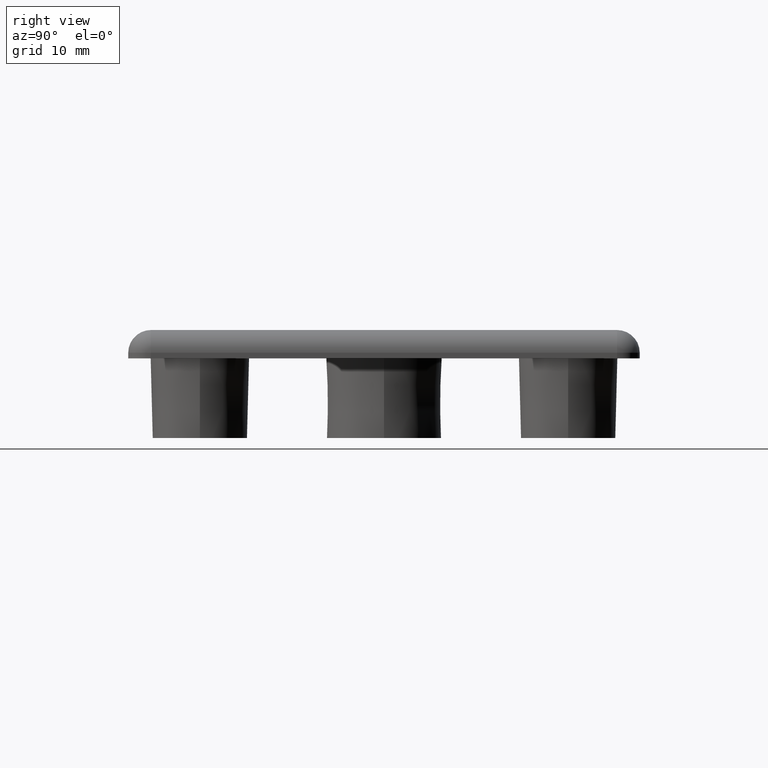
[diagram: clean part render]
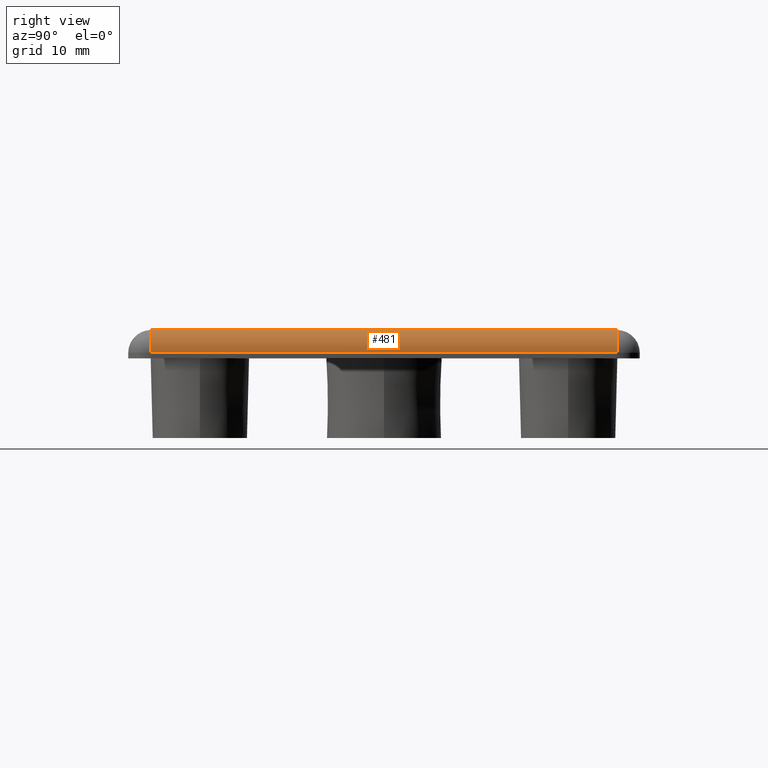
[diagram: same view with one face highlighted and labeled with its STEP entity id]
A machine part, right view. The second image highlights one B-rep face of the part: STEP entity #481.
In plain terms, the highlighted cylindrical surface (edge-blend (fillet) strip) has radius 2 mm, axis along (-0, 1, 0).
Its self-contained STEP definition (entity closure, byte-faithful):
#23=CYLINDRICAL_SURFACE('',#554,2.);
#34=LINE('',#782,#54);
#42=LINE('',#853,#62);
#54=VECTOR('',#610,41.);
#62=VECTOR('',#708,41.);
#131=FACE_OUTER_BOUND('',#189,.T.);
#189=EDGE_LOOP('',(#407,#408,#409,#410));
#225=CIRCLE('',#542,2.);
#231=CIRCLE('',#552,2.);
#252=VERTEX_POINT('',#776);
#254=VERTEX_POINT('',#780);
#269=VERTEX_POINT('',#830);
#272=VERTEX_POINT('',#846);
#294=EDGE_CURVE('',#252,#254,#34,.T.);
#310=EDGE_CURVE('',#269,#252,#225,.F.);
#320=EDGE_CURVE('',#254,#272,#231,.F.);
#323=EDGE_CURVE('',#272,#269,#42,.T.);
#407=ORIENTED_EDGE('',*,*,#310,.T.);
#408=ORIENTED_EDGE('',*,*,#294,.T.);
#409=ORIENTED_EDGE('',*,*,#320,.T.);
#410=ORIENTED_EDGE('',*,*,#323,.T.);
#481=ADVANCED_FACE('',(#131),#23,.T.);
#542=AXIS2_PLACEMENT_3D('',#831,#676,#677);
#552=AXIS2_PLACEMENT_3D('',#848,#700,#701);
#554=AXIS2_PLACEMENT_3D('',#852,#706,#707);
#610=DIRECTION('',(9.86864910777917E-17,-1.,0.));
#676=DIRECTION('center_axis',(0.,1.,0.));
#677=DIRECTION('ref_axis',(1.,0.,0.));
#700=DIRECTION('center_axis',(-2.22044604925031E-15,-1.,0.));
#701=DIRECTION('ref_axis',(0.,0.,1.));
#706=DIRECTION('center_axis',(-9.86864910777917E-17,1.,0.));
#707=DIRECTION('ref_axis',(0.707106781186548,0.,0.707106781186547));
#708=DIRECTION('',(-9.86864910777917E-17,1.,0.));
#776=CARTESIAN_POINT('',(20.5,20.5,2.5));
#780=CARTESIAN_POINT('',(20.5,-20.5,2.5));
#782=CARTESIAN_POINT('',(20.5,-11.25,2.5));
#830=CARTESIAN_POINT('',(22.5,20.5,0.5));
#831=CARTESIAN_POINT('Origin',(20.5,20.5,0.5));
#846=CARTESIAN_POINT('',(22.5,-20.5,0.5));
#848=CARTESIAN_POINT('Origin',(20.5,-20.5,0.5));
#852=CARTESIAN_POINT('Origin',(20.5,-11.25,0.5));
#853=CARTESIAN_POINT('',(22.5,-11.25,0.5));